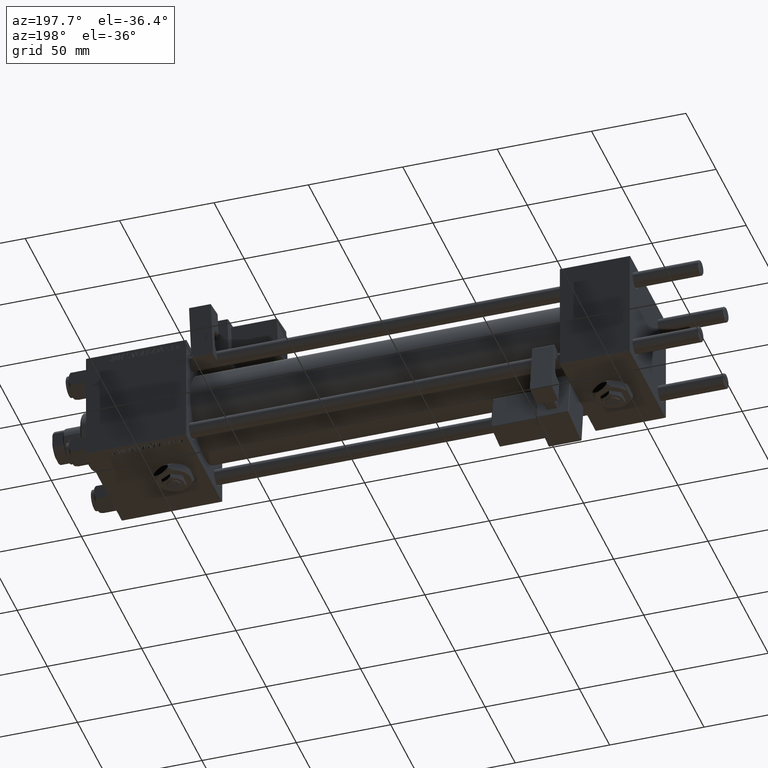
[diagram: clean part render]
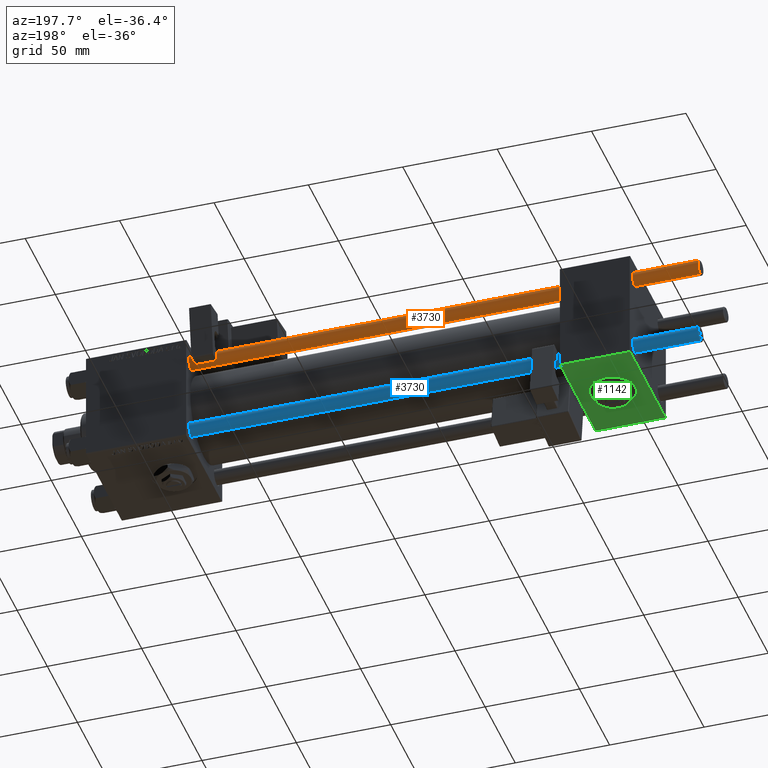
[diagram: same view with three faces highlighted in distinct colors, each labeled with its STEP entity id]
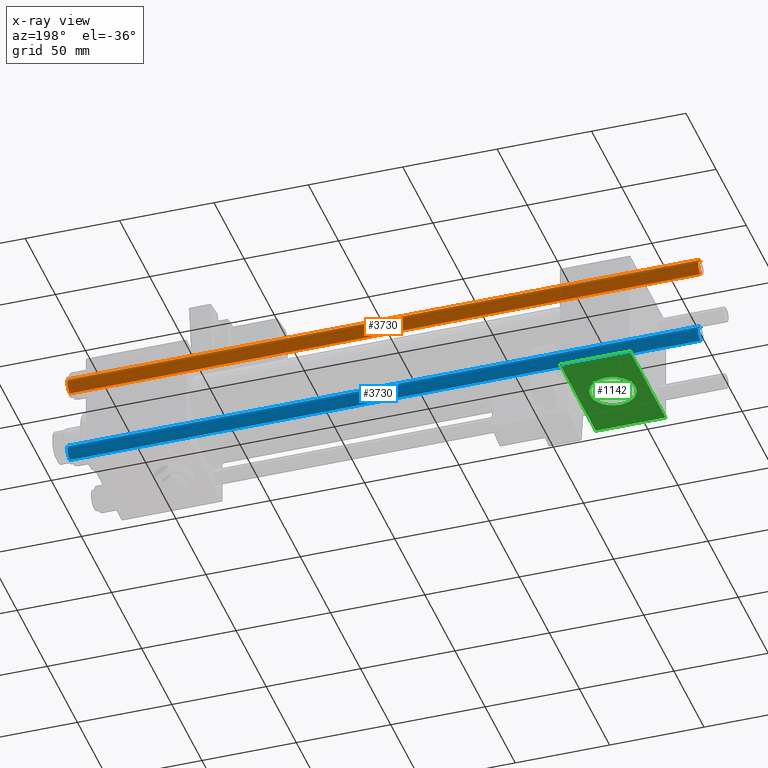
[diagram: x-ray of the same camera — body ghosted, the three highlighted faces saturated]
A machine part, auxiliary view with three faces highlighted in distinct colors.
The next image is the same camera in x-ray (body ghosted, the three faces saturated) — at least one of them is partly hidden behind the body in this view.
Their STEP definitions:

[orange] entity #3730 — the highlighted cylindrical surface (edge-blend (fillet) strip) has radius 4 mm, axis along (-1, -0, -0).
#3730 = ADVANCED_FACE ( 'NONE', ( #44505 ), #39331, .T. ) ;
#5892 = DIRECTION ( 'NONE',  ( 0.000000000000000000, 0.000000000000000000, -1.000000000000000000 ) ) ;
#6689 = ORIENTED_EDGE ( 'NONE', *, *, #31404, .F. ) ;
#8776 = LINE ( 'NONE', #29832, #11802 ) ;
#9953 = CIRCLE ( 'NONE', #28289, 4.000000000000000000 ) ;
#10897 = VERTEX_POINT ( 'NONE', #44476 ) ;
#11347 = VERTEX_POINT ( 'NONE', #28790 ) ;
#11802 = VECTOR ( 'NONE', #25704, 1000.000000000000000 ) ;
#12365 = CIRCLE ( 'NONE', #51707, 4.000000000000000000 ) ;
#12864 = CARTESIAN_POINT ( 'NONE',  ( 0.000000000000000000, 0.000000000000000000, 0.5000000000000559552 ) ) ;
#17954 = VECTOR ( 'NONE', #50981, 1000.000000000000000 ) ;
#21074 = VERTEX_POINT ( 'NONE', #39201 ) ;
#21077 = DIRECTION ( 'NONE',  ( -0.000000000000000000, -0.000000000000000000, 1.000000000000000000 ) ) ;
#23040 = EDGE_CURVE ( 'NONE', #10897, #21074, #9953, .T. ) ;
#23423 = CARTESIAN_POINT ( 'NONE',  ( 0.000000000000000000, 0.000000000000000000, 335.0000000000000000 ) ) ;
#25704 = DIRECTION ( 'NONE',  ( -0.000000000000000000, -0.000000000000000000, -1.000000000000000000 ) ) ;
#26203 = EDGE_CURVE ( 'NONE', #38508, #10897, #8776, .T. ) ;
#26736 = ORIENTED_EDGE ( 'NONE', *, *, #47370, .T. ) ;
#27221 = DIRECTION ( 'NONE',  ( 1.000000000000000000, 0.000000000000000000, 0.000000000000000000 ) ) ;
#28289 = AXIS2_PLACEMENT_3D ( 'NONE', #12864, #21077, #42430 ) ;
#28585 = CARTESIAN_POINT ( 'NONE',  ( 4.000000000000000000, 4.898587196589412829E-16, 334.5000000000000000 ) ) ;
#28790 = CARTESIAN_POINT ( 'NONE',  ( -4.000000000000000000, 0.000000000000000000, 334.5000000000000000 ) ) ;
#29397 = ORIENTED_EDGE ( 'NONE', *, *, #26203, .T. ) ;
#29832 = CARTESIAN_POINT ( 'NONE',  ( 4.000000000000000000, 4.898587196589412829E-16, 335.0000000000000000 ) ) ;
#31404 = EDGE_CURVE ( 'NONE', #11347, #21074, #38654, .T. ) ;
#34283 = CARTESIAN_POINT ( 'NONE',  ( -4.000000000000000000, 0.000000000000000000, 335.0000000000000000 ) ) ;
#38508 = VERTEX_POINT ( 'NONE', #28585 ) ;
#38654 = LINE ( 'NONE', #34283, #17954 ) ;
#39201 = CARTESIAN_POINT ( 'NONE',  ( -4.000000000000000000, 0.000000000000000000, 0.5000000000000559552 ) ) ;
#39331 = CYLINDRICAL_SURFACE ( 'NONE', #39946, 4.000000000000000000 ) ;
#39815 = CARTESIAN_POINT ( 'NONE',  ( 0.000000000000000000, 0.000000000000000000, 334.5000000000000000 ) ) ;
#39946 = AXIS2_PLACEMENT_3D ( 'NONE', #23423, #40129, #52728 ) ;
#40129 = DIRECTION ( 'NONE',  ( -0.000000000000000000, -0.000000000000000000, -1.000000000000000000 ) ) ;
#42430 = DIRECTION ( 'NONE',  ( 1.000000000000000000, 0.000000000000000000, 0.000000000000000000 ) ) ;
#43906 = ORIENTED_EDGE ( 'NONE', *, *, #23040, .T. ) ;
#44476 = CARTESIAN_POINT ( 'NONE',  ( 4.000000000000000000, 4.898587196589412829E-16, 0.5000000000000559552 ) ) ;
#44505 = FACE_OUTER_BOUND ( 'NONE', #46352, .T. ) ;
#46352 = EDGE_LOOP ( 'NONE', ( #26736, #29397, #43906, #6689 ) ) ;
#47370 = EDGE_CURVE ( 'NONE', #11347, #38508, #12365, .T. ) ;
#50981 = DIRECTION ( 'NONE',  ( -0.000000000000000000, -0.000000000000000000, -1.000000000000000000 ) ) ;
#51707 = AXIS2_PLACEMENT_3D ( 'NONE', #39815, #5892, #27221 ) ;
#52728 = DIRECTION ( 'NONE',  ( -1.000000000000000000, 0.000000000000000000, 0.000000000000000000 ) ) ;

[blue] entity #3730 — the highlighted cylindrical surface (edge-blend (fillet) strip) has radius 4 mm, axis along (1, 0, -0).
#3730 = ADVANCED_FACE ( 'NONE', ( #44505 ), #39331, .T. ) ;
#5892 = DIRECTION ( 'NONE',  ( 0.000000000000000000, 0.000000000000000000, -1.000000000000000000 ) ) ;
#6689 = ORIENTED_EDGE ( 'NONE', *, *, #31404, .F. ) ;
#8776 = LINE ( 'NONE', #29832, #11802 ) ;
#9953 = CIRCLE ( 'NONE', #28289, 4.000000000000000000 ) ;
#10897 = VERTEX_POINT ( 'NONE', #44476 ) ;
#11347 = VERTEX_POINT ( 'NONE', #28790 ) ;
#11802 = VECTOR ( 'NONE', #25704, 1000.000000000000000 ) ;
#12365 = CIRCLE ( 'NONE', #51707, 4.000000000000000000 ) ;
#12864 = CARTESIAN_POINT ( 'NONE',  ( 0.000000000000000000, 0.000000000000000000, 0.5000000000000559552 ) ) ;
#17954 = VECTOR ( 'NONE', #50981, 1000.000000000000000 ) ;
#21074 = VERTEX_POINT ( 'NONE', #39201 ) ;
#21077 = DIRECTION ( 'NONE',  ( -0.000000000000000000, -0.000000000000000000, 1.000000000000000000 ) ) ;
#23040 = EDGE_CURVE ( 'NONE', #10897, #21074, #9953, .T. ) ;
#23423 = CARTESIAN_POINT ( 'NONE',  ( 0.000000000000000000, 0.000000000000000000, 335.0000000000000000 ) ) ;
#25704 = DIRECTION ( 'NONE',  ( -0.000000000000000000, -0.000000000000000000, -1.000000000000000000 ) ) ;
#26203 = EDGE_CURVE ( 'NONE', #38508, #10897, #8776, .T. ) ;
#26736 = ORIENTED_EDGE ( 'NONE', *, *, #47370, .T. ) ;
#27221 = DIRECTION ( 'NONE',  ( 1.000000000000000000, 0.000000000000000000, 0.000000000000000000 ) ) ;
#28289 = AXIS2_PLACEMENT_3D ( 'NONE', #12864, #21077, #42430 ) ;
#28585 = CARTESIAN_POINT ( 'NONE',  ( 4.000000000000000000, 4.898587196589412829E-16, 334.5000000000000000 ) ) ;
#28790 = CARTESIAN_POINT ( 'NONE',  ( -4.000000000000000000, 0.000000000000000000, 334.5000000000000000 ) ) ;
#29397 = ORIENTED_EDGE ( 'NONE', *, *, #26203, .T. ) ;
#29832 = CARTESIAN_POINT ( 'NONE',  ( 4.000000000000000000, 4.898587196589412829E-16, 335.0000000000000000 ) ) ;
#31404 = EDGE_CURVE ( 'NONE', #11347, #21074, #38654, .T. ) ;
#34283 = CARTESIAN_POINT ( 'NONE',  ( -4.000000000000000000, 0.000000000000000000, 335.0000000000000000 ) ) ;
#38508 = VERTEX_POINT ( 'NONE', #28585 ) ;
#38654 = LINE ( 'NONE', #34283, #17954 ) ;
#39201 = CARTESIAN_POINT ( 'NONE',  ( -4.000000000000000000, 0.000000000000000000, 0.5000000000000559552 ) ) ;
#39331 = CYLINDRICAL_SURFACE ( 'NONE', #39946, 4.000000000000000000 ) ;
#39815 = CARTESIAN_POINT ( 'NONE',  ( 0.000000000000000000, 0.000000000000000000, 334.5000000000000000 ) ) ;
#39946 = AXIS2_PLACEMENT_3D ( 'NONE', #23423, #40129, #52728 ) ;
#40129 = DIRECTION ( 'NONE',  ( -0.000000000000000000, -0.000000000000000000, -1.000000000000000000 ) ) ;
#42430 = DIRECTION ( 'NONE',  ( 1.000000000000000000, 0.000000000000000000, 0.000000000000000000 ) ) ;
#43906 = ORIENTED_EDGE ( 'NONE', *, *, #23040, .T. ) ;
#44476 = CARTESIAN_POINT ( 'NONE',  ( 4.000000000000000000, 4.898587196589412829E-16, 0.5000000000000559552 ) ) ;
#44505 = FACE_OUTER_BOUND ( 'NONE', #46352, .T. ) ;
#46352 = EDGE_LOOP ( 'NONE', ( #26736, #29397, #43906, #6689 ) ) ;
#47370 = EDGE_CURVE ( 'NONE', #11347, #38508, #12365, .T. ) ;
#50981 = DIRECTION ( 'NONE',  ( -0.000000000000000000, -0.000000000000000000, -1.000000000000000000 ) ) ;
#51707 = AXIS2_PLACEMENT_3D ( 'NONE', #39815, #5892, #27221 ) ;
#52728 = DIRECTION ( 'NONE',  ( -1.000000000000000000, 0.000000000000000000, 0.000000000000000000 ) ) ;

[green] entity #1142 — the highlighted planar face has unit normal (0, 0, -1).
#1142 = ADVANCED_FACE ( 'NONE', ( #45996, #8506 ), #13392, .T. ) ;
#1244 = DIRECTION ( 'NONE',  ( 0.000000000000000000, -1.734723475976806848E-16, -1.000000000000000000 ) ) ;
#2266 = CARTESIAN_POINT ( 'NONE',  ( 37.00000000000000000, 29.49999999999997868, -30.00000000000000000 ) ) ;
#2857 = CARTESIAN_POINT ( 'NONE',  ( 18.50000000000000000, 12.00000000000000178, -30.00000000000000711 ) ) ;
#4813 = AXIS2_PLACEMENT_3D ( 'NONE', #25769, #21377, #20846 ) ;
#5577 = CIRCLE ( 'NONE', #50148, 12.00000000000000178 ) ;
#6583 = CIRCLE ( 'NONE', #4813, 12.00000000000000178 ) ;
#6819 = EDGE_CURVE ( 'NONE', #51273, #37797, #23759, .T. ) ;
#8296 = ORIENTED_EDGE ( 'NONE', *, *, #32801, .T. ) ;
#8406 = CARTESIAN_POINT ( 'NONE',  ( 18.50000000000000000, -12.00000000000000178, -30.00000000000000000 ) ) ;
#8506 = FACE_OUTER_BOUND ( 'NONE', #45334, .T. ) ;
#9186 = CARTESIAN_POINT ( 'NONE',  ( 18.50000000000000000, 2.651473169999849714E-16, -30.00000000000000355 ) ) ;
#12493 = CARTESIAN_POINT ( 'NONE',  ( 0.000000000000000000, 29.49999999999997868, -30.00000000000000000 ) ) ;
#12901 = ORIENTED_EDGE ( 'NONE', *, *, #47038, .T. ) ;
#13392 = PLANE ( 'NONE',  #26765 ) ;
#15534 = CARTESIAN_POINT ( 'NONE',  ( 0.000000000000000000, -29.50000000000001066, -30.00000000000000711 ) ) ;
#15930 = CARTESIAN_POINT ( 'NONE',  ( 37.00000000000000000, 29.49999999999997868, -30.00000000000000000 ) ) ;
#17135 = LINE ( 'NONE', #33857, #29327 ) ;
#19892 = EDGE_CURVE ( 'NONE', #39293, #50446, #5577, .T. ) ;
#20846 = DIRECTION ( 'NONE',  ( 0.000000000000000000, 1.000000000000000000, -2.891205793294677833E-16 ) ) ;
#21377 = DIRECTION ( 'NONE',  ( 0.000000000000000000, -1.734723475976806848E-16, -1.000000000000000000 ) ) ;
#23759 = LINE ( 'NONE', #15534, #40017 ) ;
#24253 = VERTEX_POINT ( 'NONE', #12493 ) ;
#25758 = EDGE_CURVE ( 'NONE', #50446, #39293, #6583, .T. ) ;
#25769 = CARTESIAN_POINT ( 'NONE',  ( 18.50000000000000000, 2.651473169999849714E-16, -30.00000000000000355 ) ) ;
#26471 = DIRECTION ( 'NONE',  ( 0.000000000000000000, -1.000000000000000000, -1.156482317317871725E-16 ) ) ;
#26765 = AXIS2_PLACEMENT_3D ( 'NONE', #30110, #46806, #51189 ) ;
#26949 = VERTEX_POINT ( 'NONE', #2266 ) ;
#28040 = VECTOR ( 'NONE', #26471, 1000.000000000000000 ) ;
#29327 = VECTOR ( 'NONE', #46729, 1000.000000000000000 ) ;
#30110 = CARTESIAN_POINT ( 'NONE',  ( 37.00000000000000000, 29.99999999999999289, -30.00000000000000000 ) ) ;
#30692 = EDGE_CURVE ( 'NONE', #24253, #37797, #17135, .T. ) ;
#31265 = CARTESIAN_POINT ( 'NONE',  ( 37.00000000000000000, -29.50000000000000000, -30.00000000000000711 ) ) ;
#31581 = ORIENTED_EDGE ( 'NONE', *, *, #19892, .F. ) ;
#32801 = EDGE_CURVE ( 'NONE', #24253, #26949, #36471, .T. ) ;
#33857 = CARTESIAN_POINT ( 'NONE',  ( 0.000000000000000000, 29.99999999999999289, -30.00000000000000000 ) ) ;
#35233 = LINE ( 'NONE', #35766, #28040 ) ;
#35766 = CARTESIAN_POINT ( 'NONE',  ( 37.00000000000000000, 29.99999999999999289, -30.00000000000000000 ) ) ;
#36471 = LINE ( 'NONE', #15930, #39936 ) ;
#37797 = VERTEX_POINT ( 'NONE', #50392 ) ;
#38956 = ORIENTED_EDGE ( 'NONE', *, *, #30692, .F. ) ;
#39293 = VERTEX_POINT ( 'NONE', #8406 ) ;
#39936 = VECTOR ( 'NONE', #53175, 1000.000000000000000 ) ;
#40017 = VECTOR ( 'NONE', #44301, 1000.000000000000000 ) ;
#41899 = ORIENTED_EDGE ( 'NONE', *, *, #25758, .F. ) ;
#42552 = DIRECTION ( 'NONE',  ( 0.000000000000000000, 1.000000000000000000, -2.891205793294677833E-16 ) ) ;
#43223 = EDGE_LOOP ( 'NONE', ( #41899, #31581 ) ) ;
#43866 = ORIENTED_EDGE ( 'NONE', *, *, #6819, .T. ) ;
#44301 = DIRECTION ( 'NONE',  ( -1.000000000000000000, 0.000000000000000000, 0.000000000000000000 ) ) ;
#45334 = EDGE_LOOP ( 'NONE', ( #38956, #8296, #12901, #43866 ) ) ;
#45996 = FACE_BOUND ( 'NONE', #43223, .T. ) ;
#46729 = DIRECTION ( 'NONE',  ( 0.000000000000000000, -1.000000000000000000, -1.156482317317871725E-16 ) ) ;
#46806 = DIRECTION ( 'NONE',  ( 0.000000000000000000, 1.156482317317871725E-16, -1.000000000000000000 ) ) ;
#47038 = EDGE_CURVE ( 'NONE', #26949, #51273, #35233, .T. ) ;
#50148 = AXIS2_PLACEMENT_3D ( 'NONE', #9186, #1244, #42552 ) ;
#50392 = CARTESIAN_POINT ( 'NONE',  ( 0.000000000000000000, -29.50000000000000000, -30.00000000000000711 ) ) ;
#50446 = VERTEX_POINT ( 'NONE', #2857 ) ;
#51189 = DIRECTION ( 'NONE',  ( 0.000000000000000000, 1.000000000000000000, 1.156482317317871725E-16 ) ) ;
#51273 = VERTEX_POINT ( 'NONE', #31265 ) ;
#53175 = DIRECTION ( 'NONE',  ( 1.000000000000000000, 0.000000000000000000, 0.000000000000000000 ) ) ;